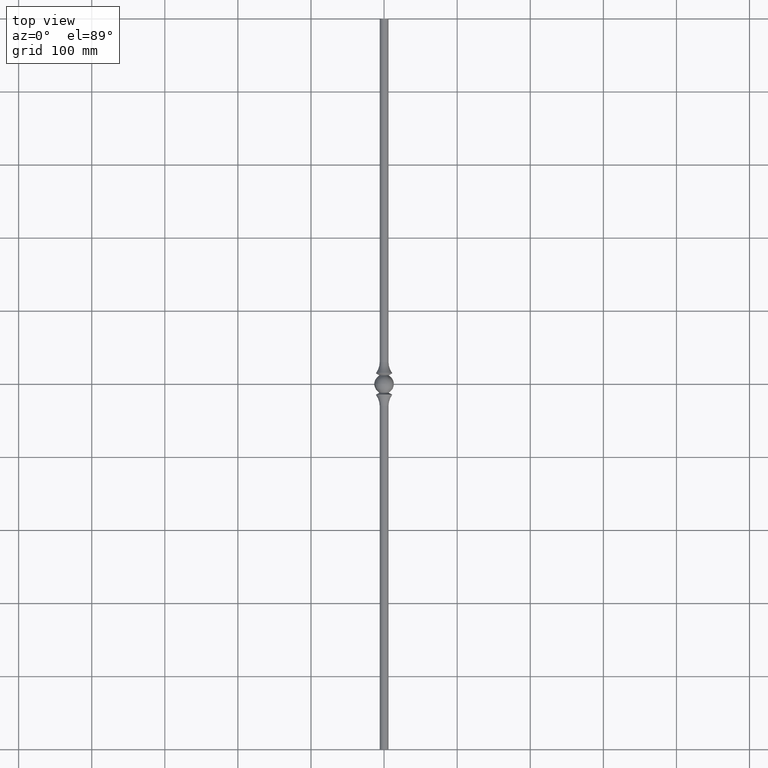
[diagram: clean part render]
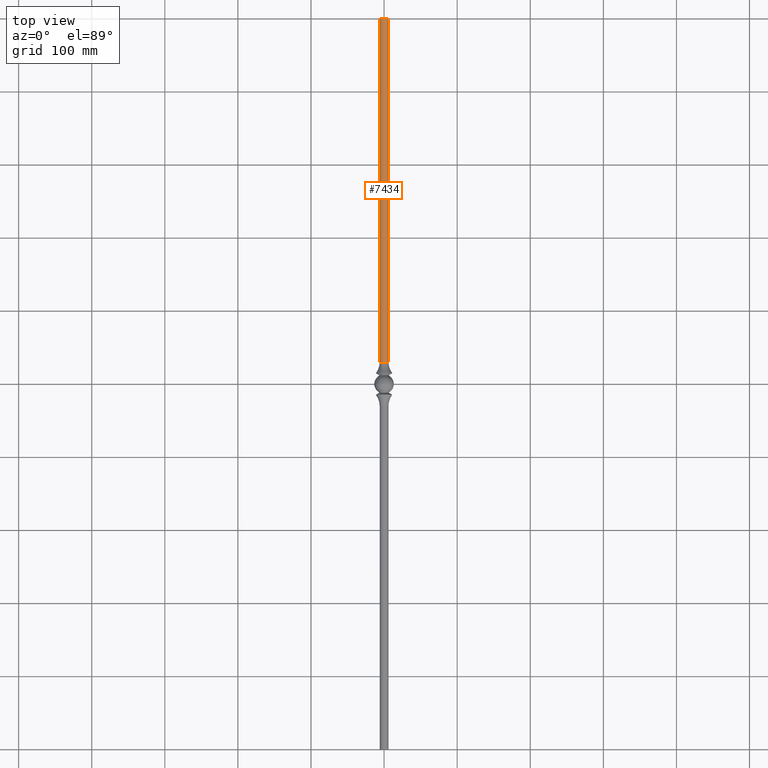
[diagram: same view with one face highlighted and labeled with its STEP entity id]
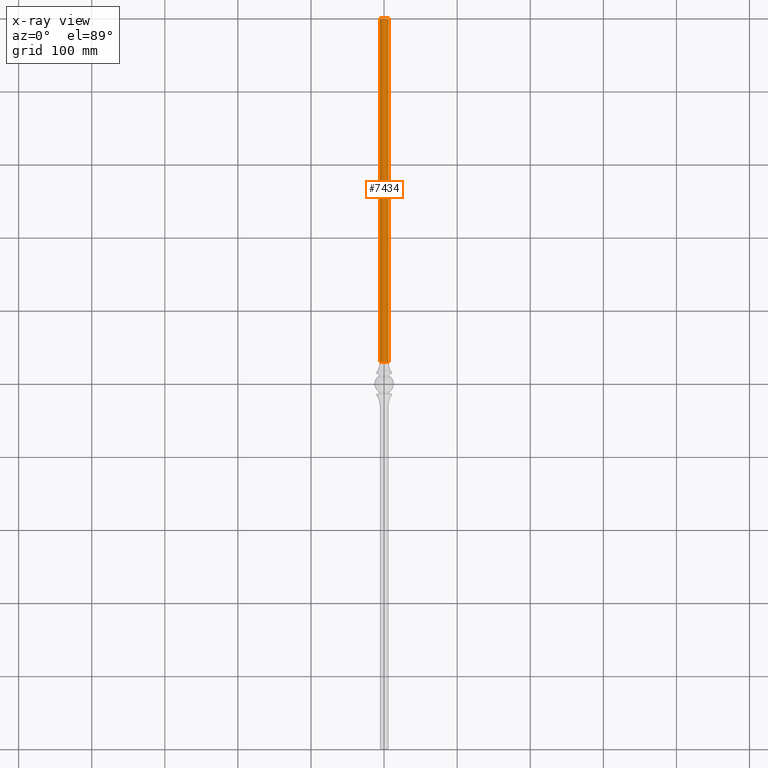
[diagram: x-ray of the same camera — body ghosted, the highlighted face saturated]
A machine part, top view. The second image highlights one B-rep face of the part: STEP entity #7434.
The next image is the same camera in x-ray: the body ghosted, the highlighted face saturated — about 0% of this face is hidden behind the body in this view.
In plain terms, the highlighted cylindrical surface (bore or boss wall) has radius 6 mm, axis along (0, -1, -0).
Its self-contained STEP definition (entity closure, byte-faithful):
#172 = FACE_OUTER_BOUND ( 'NONE', #10537, .T. ) ;
#595 = DIRECTION ( 'NONE',  ( 1.078970441293838211E-16, -1.000000000000000000, -0.000000000000000000 ) ) ;
#604 = AXIS2_PLACEMENT_3D ( 'NONE', #8807, #8692, #4634 ) ;
#1097 = DIRECTION ( 'NONE',  ( -1.078970441293838088E-16, 1.000000000000000000, -0.000000000000000000 ) ) ;
#1146 = VERTEX_POINT ( 'NONE', #10470 ) ;
#1580 = EDGE_CURVE ( 'NONE', #2068, #2068, #5440, .T. ) ;
#2068 = VERTEX_POINT ( 'NONE', #4564 ) ;
#2596 = EDGE_CURVE ( 'NONE', #1146, #1146, #5037, .T. ) ;
#2670 = ORIENTED_EDGE ( 'NONE', *, *, #1580, .T. ) ;
#3519 = CYLINDRICAL_SURFACE ( 'NONE', #5012, 6.000000000000005329 ) ;
#4275 = DIRECTION ( 'NONE',  ( -1.000000000000000000, 0.000000000000000000, 0.000000000000000000 ) ) ;
#4334 = EDGE_LOOP ( 'NONE', ( #8041 ) ) ;
#4564 = CARTESIAN_POINT ( 'NONE',  ( -6.000000000000005329, 30.00000000000000355, 0.000000000000000000 ) ) ;
#4634 = DIRECTION ( 'NONE',  ( -1.000000000000000000, 0.000000000000000000, 0.000000000000000000 ) ) ;
#5012 = AXIS2_PLACEMENT_3D ( 'NONE', #7110, #595, #9558 ) ;
#5037 = CIRCLE ( 'NONE', #604, 6.000000000000005329 ) ;
#5440 = CIRCLE ( 'NONE', #5474, 6.000000000000005329 ) ;
#5474 = AXIS2_PLACEMENT_3D ( 'NONE', #6025, #1097, #4275 ) ;
#6025 = CARTESIAN_POINT ( 'NONE',  ( -3.044924380883460151E-31, 30.00000000000000355, 0.000000000000000000 ) ) ;
#7110 = CARTESIAN_POINT ( 'NONE',  ( -5.071161074081038374E-14, 500.0000000000000000, 0.000000000000000000 ) ) ;
#7434 = ADVANCED_FACE ( 'NONE', ( #9927, #172 ), #3519, .T. ) ;
#8041 = ORIENTED_EDGE ( 'NONE', *, *, #2596, .F. ) ;
#8692 = DIRECTION ( 'NONE',  ( -1.078970441293838088E-16, 1.000000000000000000, 0.000000000000000000 ) ) ;
#8807 = CARTESIAN_POINT ( 'NONE',  ( -5.071161074081038374E-14, 500.0000000000000000, 0.000000000000000000 ) ) ;
#9558 = DIRECTION ( 'NONE',  ( 1.000000000000000000, 0.000000000000000000, 0.000000000000000000 ) ) ;
#9927 = FACE_OUTER_BOUND ( 'NONE', #4334, .T. ) ;
#10470 = CARTESIAN_POINT ( 'NONE',  ( -6.000000000000055955, 500.0000000000000000, 0.000000000000000000 ) ) ;
#10537 = EDGE_LOOP ( 'NONE', ( #2670 ) ) ;